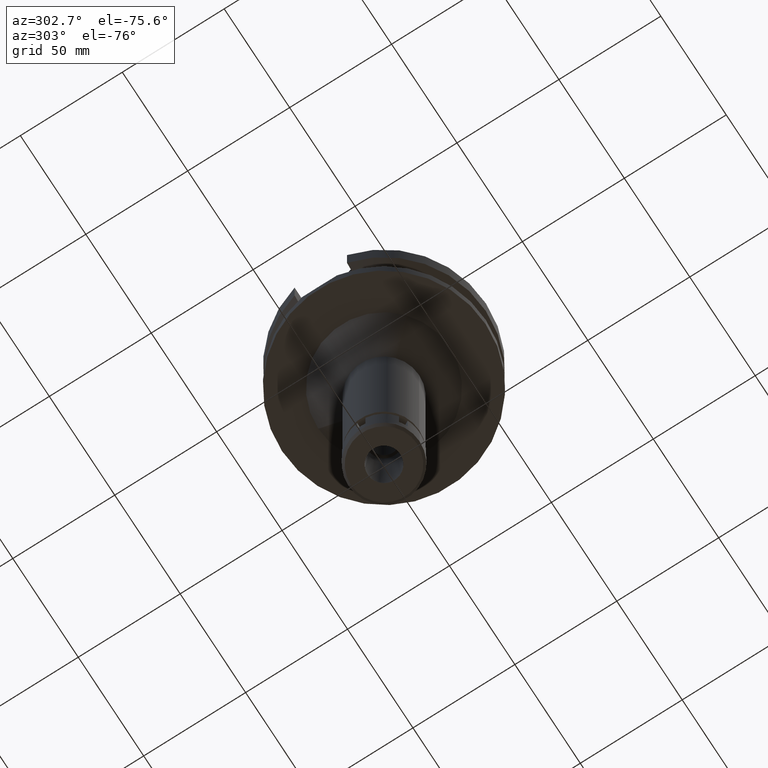
[diagram: clean part render]
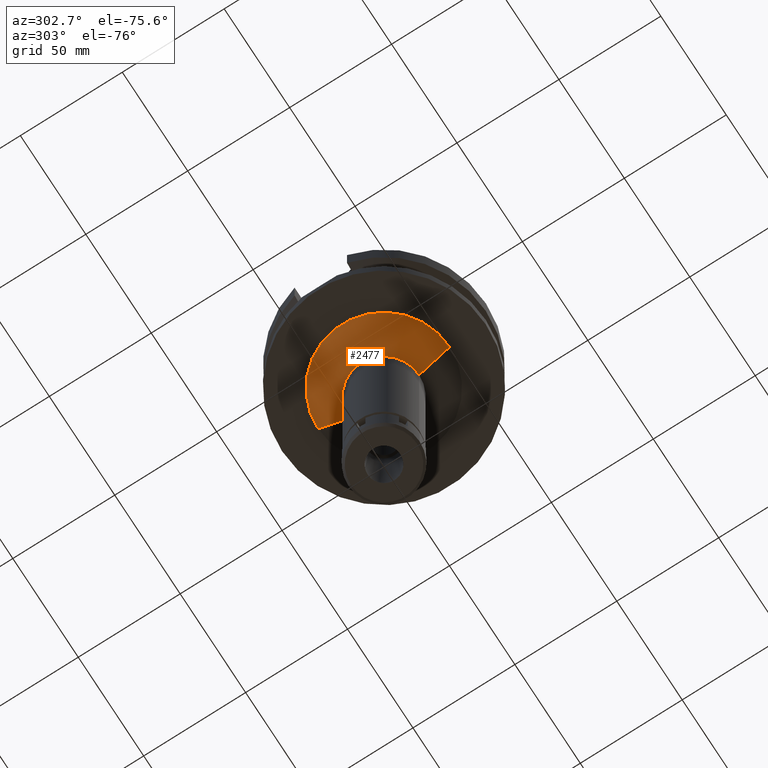
[diagram: same view with one face highlighted and labeled with its STEP entity id]
A machine part, auxiliary view. The second image highlights one B-rep face of the part: STEP entity #2477.
In plain terms, the highlighted conical surface has half-angle 45 deg.
Its self-contained STEP definition (entity closure, byte-faithful):
#28 = ORIENTED_EDGE ( 'NONE', *, *, #1897, .F. ) ;
#74 = CARTESIAN_POINT ( 'NONE',  ( 0.0000000000000000000, -17.25000000000000000, -53.00000000000000000 ) ) ;
#286 = AXIS2_PLACEMENT_3D ( 'NONE', #2315, #902, #1956 ) ;
#397 = LINE ( 'NONE', #2026, #2291 ) ;
#519 = ORIENTED_EDGE ( 'NONE', *, *, #2586, .T. ) ;
#711 = DIRECTION ( 'NONE',  ( 0.0000000000000000000, 0.0000000000000000000, 1.000000000000000000 ) ) ;
#902 = DIRECTION ( 'NONE',  ( 0.0000000000000000000, 0.0000000000000000000, -1.000000000000000000 ) ) ;
#929 = VECTOR ( 'NONE', #2272, 1000.000000000000114 ) ;
#950 = ORIENTED_EDGE ( 'NONE', *, *, #2615, .T. ) ;
#1000 = CARTESIAN_POINT ( 'NONE',  ( 0.0000000000000000000, 0.0000000000000000000, -45.50000000000000000 ) ) ;
#1043 = CONICAL_SURFACE ( 'NONE', #2357, 24.75000000000000000, 0.7853981633972997312 ) ;
#1179 = LINE ( 'NONE', #2546, #929 ) ;
#1321 = EDGE_CURVE ( 'NONE', #1534, #1795, #2797, .T. ) ;
#1521 = CARTESIAN_POINT ( 'NONE',  ( 0.0000000000000000000, -32.25000000000000000, -38.00000000000000000 ) ) ;
#1534 = VERTEX_POINT ( 'NONE', #74 ) ;
#1585 = ORIENTED_EDGE ( 'NONE', *, *, #1321, .F. ) ;
#1758 = DIRECTION ( 'NONE',  ( 0.0000000000000000000, 0.7071067811865474617, -0.7071067811865474617 ) ) ;
#1795 = VERTEX_POINT ( 'NONE', #2214 ) ;
#1845 = DIRECTION ( 'NONE',  ( 0.0000000000000000000, 1.000000000000000000, 0.0000000000000000000 ) ) ;
#1885 = CIRCLE ( 'NONE', #286, 32.25000000000000000 ) ;
#1897 = EDGE_CURVE ( 'NONE', #2774, #1534, #397, .T. ) ;
#1956 = DIRECTION ( 'NONE',  ( 0.0000000000000000000, -1.000000000000000000, 0.0000000000000000000 ) ) ;
#2026 = CARTESIAN_POINT ( 'NONE',  ( 0.0000000000000000000, -32.25000000000000000, -38.00000000000000000 ) ) ;
#2135 = VERTEX_POINT ( 'NONE', #2249 ) ;
#2214 = CARTESIAN_POINT ( 'NONE',  ( 0.0000000000000000000, 17.25000000000000000, -53.00000000000000000 ) ) ;
#2249 = CARTESIAN_POINT ( 'NONE',  ( 0.0000000000000000000, 32.25000000000000000, -38.00000000000000000 ) ) ;
#2272 = DIRECTION ( 'NONE',  ( 0.0000000000000000000, -0.7071067811865474617, -0.7071067811865474617 ) ) ;
#2291 = VECTOR ( 'NONE', #1758, 1000.000000000000114 ) ;
#2315 = CARTESIAN_POINT ( 'NONE',  ( 0.0000000000000000000, 0.0000000000000000000, -38.00000000000000000 ) ) ;
#2357 = AXIS2_PLACEMENT_3D ( 'NONE', #1000, #711, #1845 ) ;
#2477 = ADVANCED_FACE ( 'NONE', ( #2981 ), #1043, .T. ) ;
#2546 = CARTESIAN_POINT ( 'NONE',  ( 0.0000000000000000000, 32.25000000000000000, -38.00000000000000000 ) ) ;
#2586 = EDGE_CURVE ( 'NONE', #2135, #1795, #1179, .T. ) ;
#2615 = EDGE_CURVE ( 'NONE', #2774, #2135, #1885, .T. ) ;
#2634 = EDGE_LOOP ( 'NONE', ( #1585, #28, #950, #519 ) ) ;
#2774 = VERTEX_POINT ( 'NONE', #1521 ) ;
#2797 = CIRCLE ( 'NONE', #3284, 17.25000000000000000 ) ;
#2815 = CARTESIAN_POINT ( 'NONE',  ( 0.0000000000000000000, 0.0000000000000000000, -53.00000000000000000 ) ) ;
#2890 = DIRECTION ( 'NONE',  ( 0.0000000000000000000, -1.000000000000000000, 0.0000000000000000000 ) ) ;
#2981 = FACE_OUTER_BOUND ( 'NONE', #2634, .T. ) ;
#3284 = AXIS2_PLACEMENT_3D ( 'NONE', #2815, #3449, #2890 ) ;
#3449 = DIRECTION ( 'NONE',  ( 0.0000000000000000000, 0.0000000000000000000, -1.000000000000000000 ) ) ;